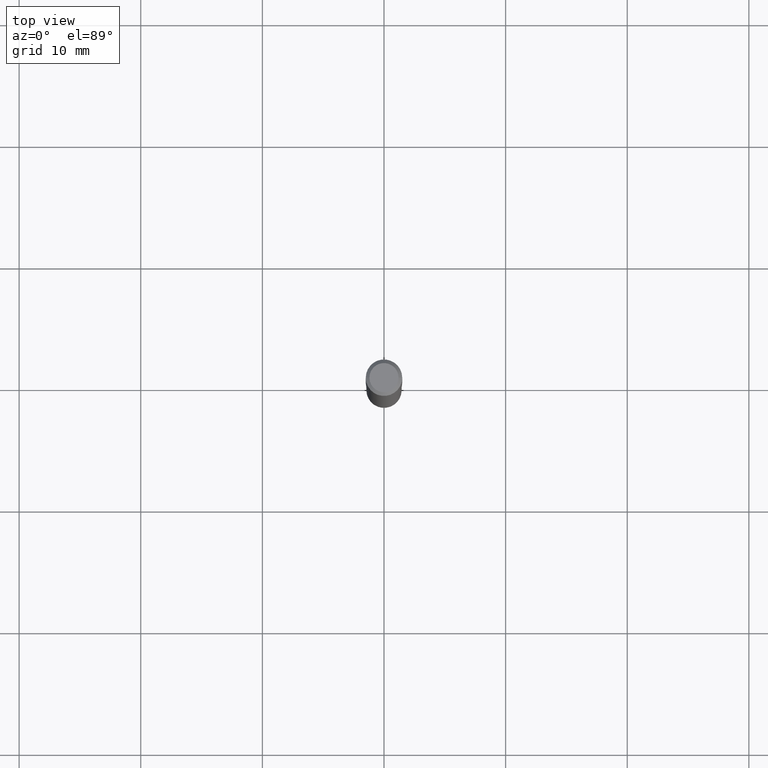
[diagram: clean part render]
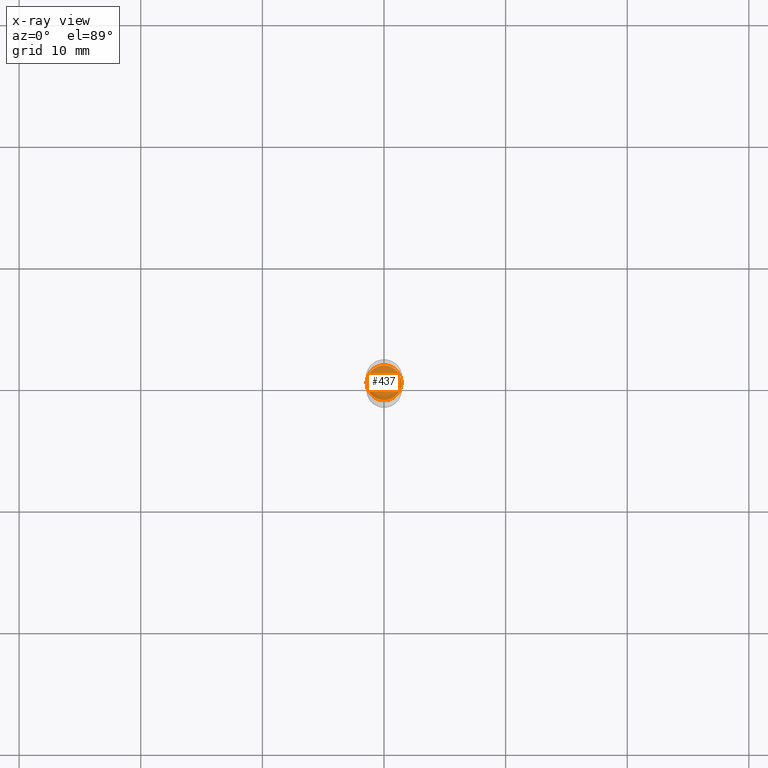
[diagram: x-ray — body ghosted, one internal face saturated and labeled with its STEP entity id]
A machine part, top view, then the same camera in x-ray: the body is ghosted and one INTERNAL B-rep face — a face not visible from any outside direction — is saturated and labeled: STEP entity #437.
In plain terms, the highlighted planar face has unit normal (-0, 0, 1).
Its self-contained STEP definition (entity closure, byte-faithful):
#10 = EDGE_CURVE ( 'NONE', #432, #235, #270, .T. ) ;
#15 = PLANE ( 'NONE',  #460 ) ;
#21 = CIRCLE ( 'NONE', #179, 0.05659999999999999060 ) ;
#52 = DIRECTION ( 'NONE',  ( 1.000000000000000000, -6.982962677686265922E-15, 4.876176775795935793E-29 ) ) ;
#55 = CARTESIAN_POINT ( 'NONE',  ( 2.425660508855035791E-29, -3.463200339998514464E-15, -0.9918999999999995598 ) ) ;
#57 = EDGE_CURVE ( 'NONE', #235, #432, #21, .T. ) ;
#74 = CARTESIAN_POINT ( 'NONE',  ( 0.05659999999999999060, -3.858436027555557071E-15, -0.9918999999999995598 ) ) ;
#95 = FACE_OUTER_BOUND ( 'NONE', #244, .T. ) ;
#144 = DIRECTION ( 'NONE',  ( -2.445468806185136597E-29, 3.491481338843145583E-15, 1.000000000000000000 ) ) ;
#156 = ORIENTED_EDGE ( 'NONE', *, *, #57, .F. ) ;
#174 = DIRECTION ( 'NONE',  ( 1.000000000000000000, -6.982962677686269077E-15, 0.000000000000000000 ) ) ;
#179 = AXIS2_PLACEMENT_3D ( 'NONE', #55, #361, #408 ) ;
#235 = VERTEX_POINT ( 'NONE', #74 ) ;
#238 = AXIS2_PLACEMENT_3D ( 'NONE', #367, #144, #174 ) ;
#244 = EDGE_LOOP ( 'NONE', ( #156, #468 ) ) ;
#270 = CIRCLE ( 'NONE', #238, 0.05659999999999999060 ) ;
#361 = DIRECTION ( 'NONE',  ( -2.445468806185136597E-29, 3.491481338843145583E-15, 1.000000000000000000 ) ) ;
#367 = CARTESIAN_POINT ( 'NONE',  ( 2.425660508855035791E-29, -3.463200339998514464E-15, -0.9918999999999995598 ) ) ;
#398 = CARTESIAN_POINT ( 'NONE',  ( -0.05659999999999999060, -3.058383924384186674E-15, -0.9918999999999995598 ) ) ;
#408 = DIRECTION ( 'NONE',  ( 1.000000000000000000, -6.982962677686269077E-15, 0.000000000000000000 ) ) ;
#430 = DIRECTION ( 'NONE',  ( -2.438088387897960049E-29, 3.491481338843145188E-15, 1.000000000000000000 ) ) ;
#432 = VERTEX_POINT ( 'NONE', #398 ) ;
#437 = ADVANCED_FACE ( 'NONE', ( #95 ), #15, .F. ) ;
#460 = AXIS2_PLACEMENT_3D ( 'NONE', #481, #430, #52 ) ;
#468 = ORIENTED_EDGE ( 'NONE', *, *, #10, .F. ) ;
#481 = CARTESIAN_POINT ( 'NONE',  ( 2.425660508855035791E-29, -3.463200339998514464E-15, -0.9918999999999995598 ) ) ;